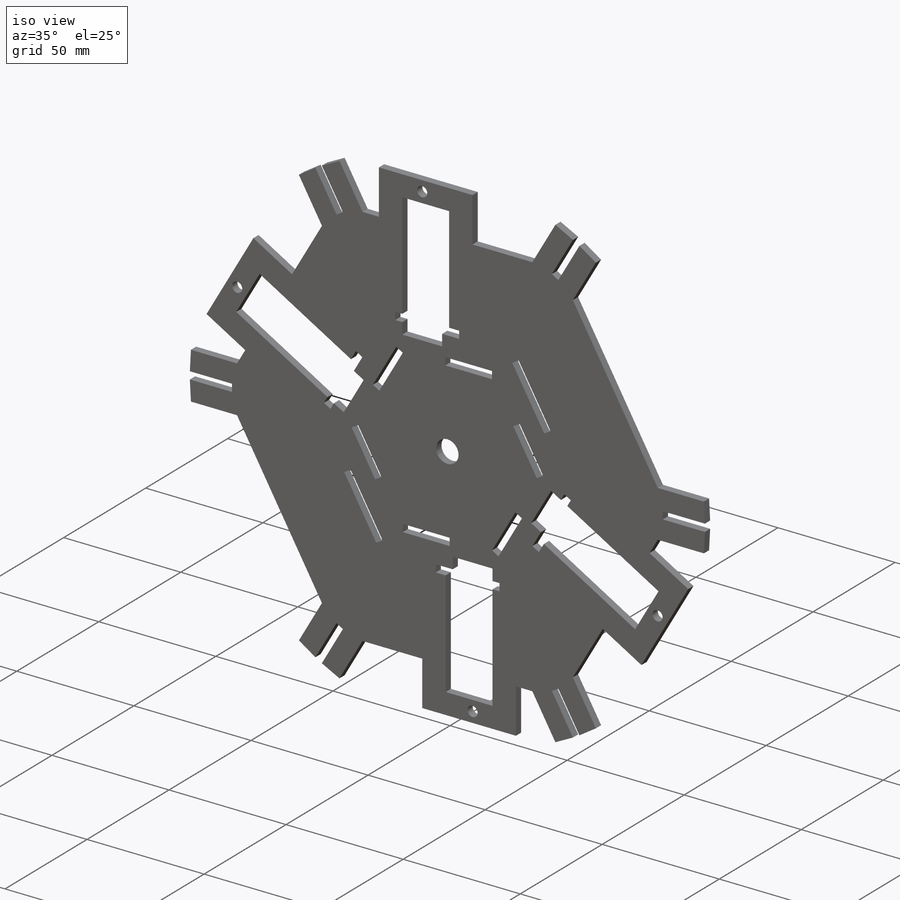
[diagram: iso view]
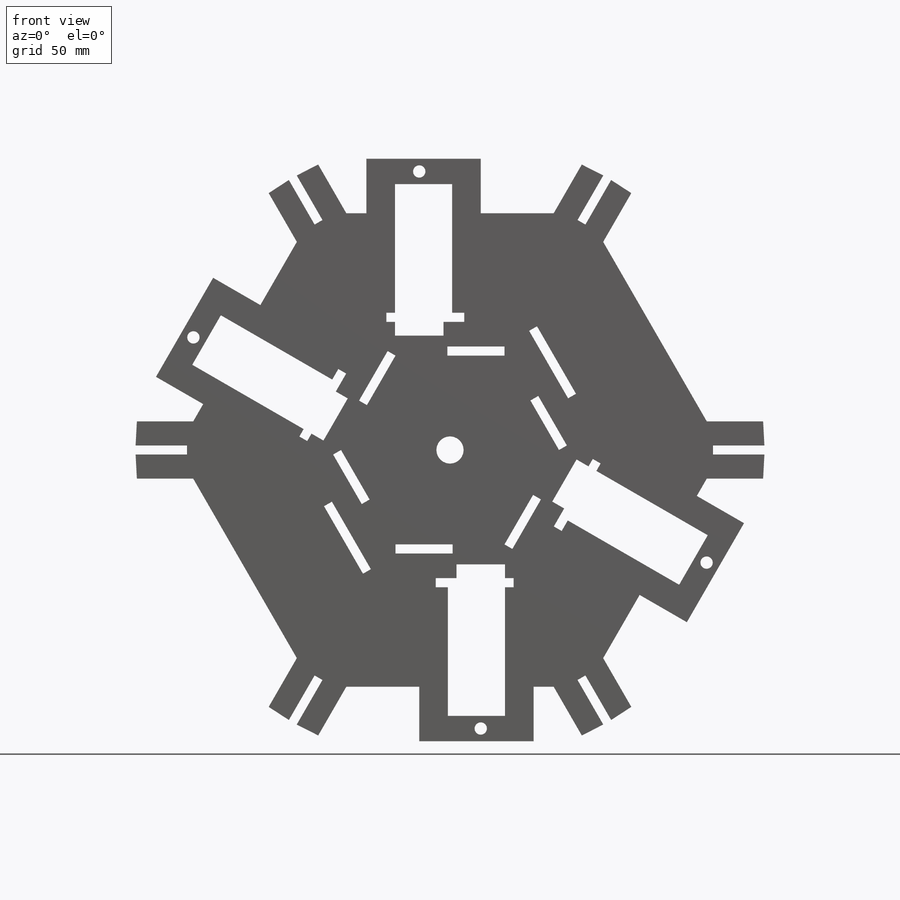
[diagram: front view]
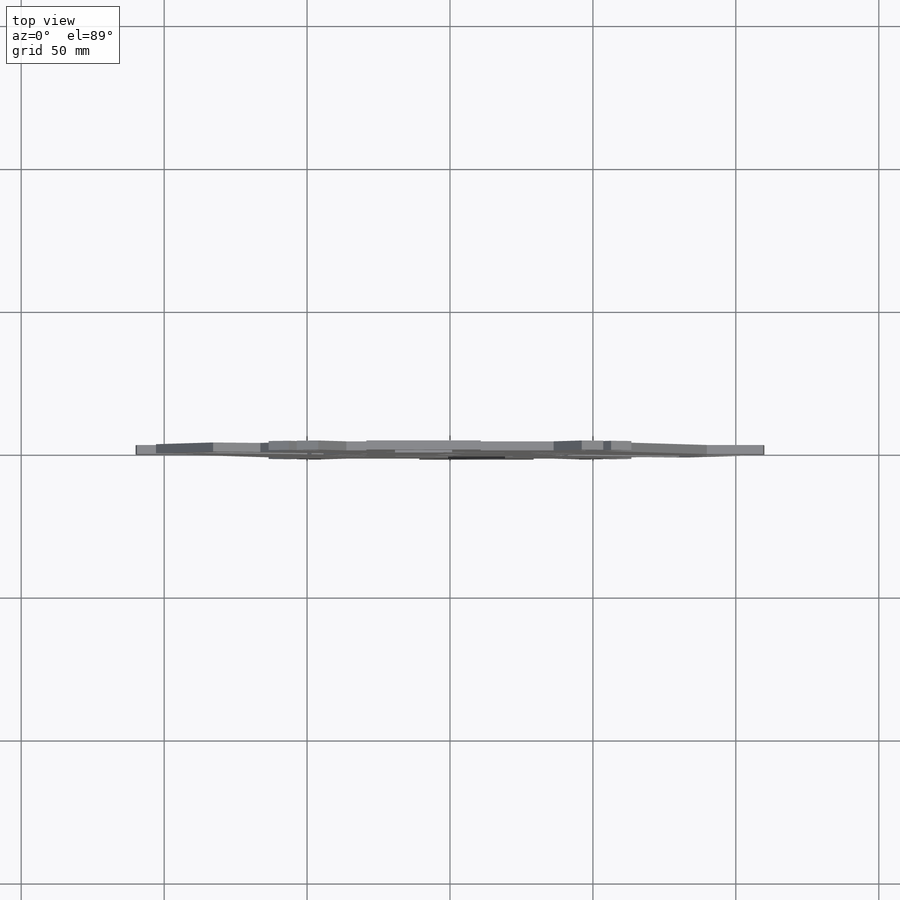
[diagram: top view]
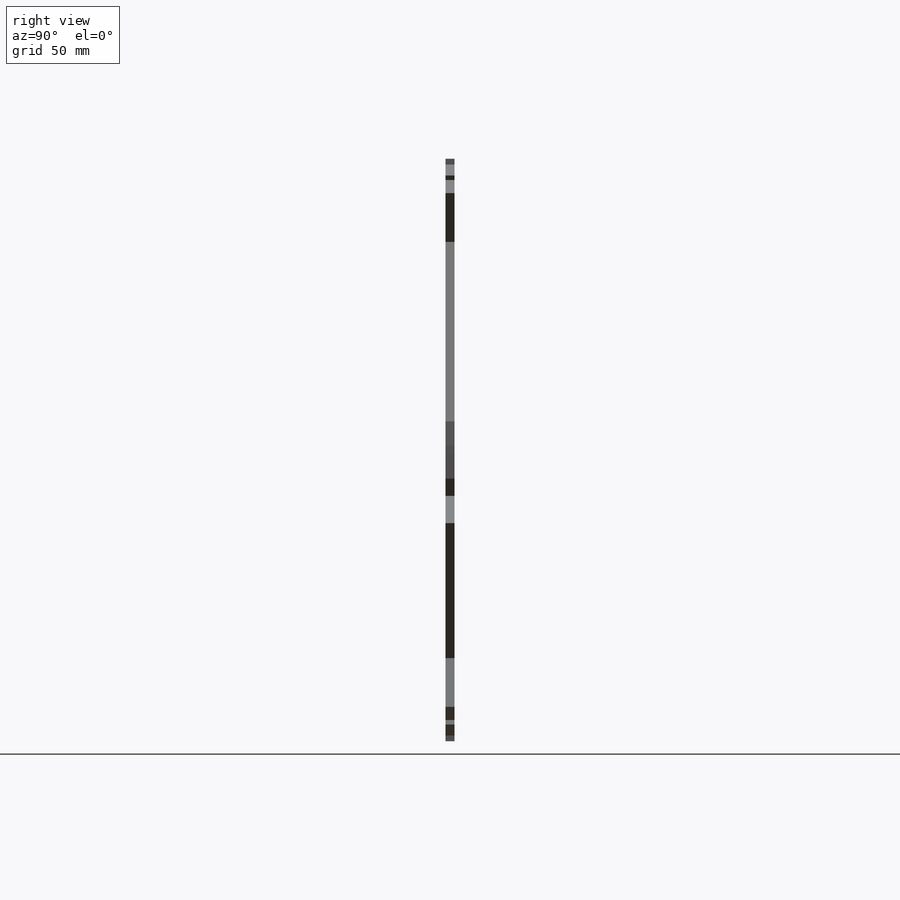
[diagram: right view]
SOLIDWORKS PART (.sldprt)
format: sldprt  version: not decoded by parser v0  size: 524,800 bytes
history: native  units: mm
features: sketch x5, cut_extrude x4, pattern_circular x2, material x1, extrude x1, plane x1 (+12 scaffold rows collapsed)
feature tree (26):
  scaffold x12  (default folders/planes/origin — collapsed)
  material  "Material <not specified>"
  sketch  "Sketch1"  dims[D5=9.525mm D11=220.0mm D1=17.0mm D2=12.0mm D3=53.0mm D4=45.0mm D6=20.0mm D7=40.0mm D10=60.0deg D8=2.0 D9=2.0 D12=2.0]
  extrude  "Boss-Extrude1"  Depth=3.175mm
  sketch  "Sketch2"  dims[c1.D10=4.3075mm c1.D11=4.5mm c1.D1=120.0deg c2.D1=70.0mm c2.D2=55.0mm c2.D3=63.0mm c2.D4=~33.276221mm c3.D1=60.0mm c4.D1=60.0deg c4.D2=~45.811395mm c5.D2=~15.379723deg c5.D3=~43.677124mm c6.D3=~0.045203deg c6.D2=10.0mm c7.D3=10.0mm c7.D4=~18.865231mm c7.D5=15.45mm c8.D4=15.45mm c8.D6=17.9405mm c9.D6=~176.464754deg c10.D6=17.9405mm c11.D6=~3.535246deg c12.D6=~17.974705mm c12.D1=120.0deg c13.D1=10.0mm c13.D2=10.0mm c13.D3=12.83mm c13.D4=12.83mm c14.D3=~95.262794mm c15.D3=60.0deg c15.D4=10.0mm c15.D5=7.0mm c15.D6=10.0mm c15.D7=5.0mm c15.D8=40.0mm c16.D6=10.0mm c16.D8=~25.526051mm c16.D4=10.0mm c17.D8=3.175mm c17.D9=10.0mm c17.D6=4.5mm c17.D7=17.5mm c18.D6=2.285mm c18.D2=2.2875mm c18.D4=10.0mm c18.D7=20.0mm c18.D8=75.7mm]
  cut_extrude  "Cut-Extrude3"  [1 undecoded]
  pattern_circular  "CirPattern1"  Count=2 Angle=180deg
  pattern_circular  "CirPattern2"  Count=2 Angle=60deg
  sketch  "Sketch5"  dims[c1.D1=150.0deg c2.D1=10.0mm c2.D3=25.53mm c3.D1=10.0deg c3.D2=10.0mm c4.D1=25.53mm c4.D2=10.0mm c4.D3=150.0deg c5.D3=10.0mm c5.D4=3.175mm c5.D5=10.0mm c5.D6=7.765mm c5.D1=10.0mm c6.D3=75.7mm c6.D2=2.0]
  cut_extrude  "Cut-Extrude5"  [1 undecoded]
  sketch  "Sketch10"  dims[D1=3.175mm D2=18.0mm D3=~5.346394mm]
  cut_extrude  "Cut-Extrude8"  Depth=10mm
  sketch  "Sketch11"  dims[c1.D1=49.2mm c1.D2=3.175mm c1.D3=3.175mm c2.D2=5.0mm c2.D3=3.0mm c2.D4=3.175mm c2.D5=3.175mm c2.D6=20.0mm c2.D7=3.175mm c3.D7=6.0]
  cut_extrude  "Cut-Extrude24"  Depth=10mm
  plane  "Plane2"
decode coverage: 10 of 12 modeling features carry decoded parameters
note: ~ marks probable driven/reference dimensions
note: 2 parameter values undecoded
note: suppression state not decoded; provenance and decode notes live in map.json
